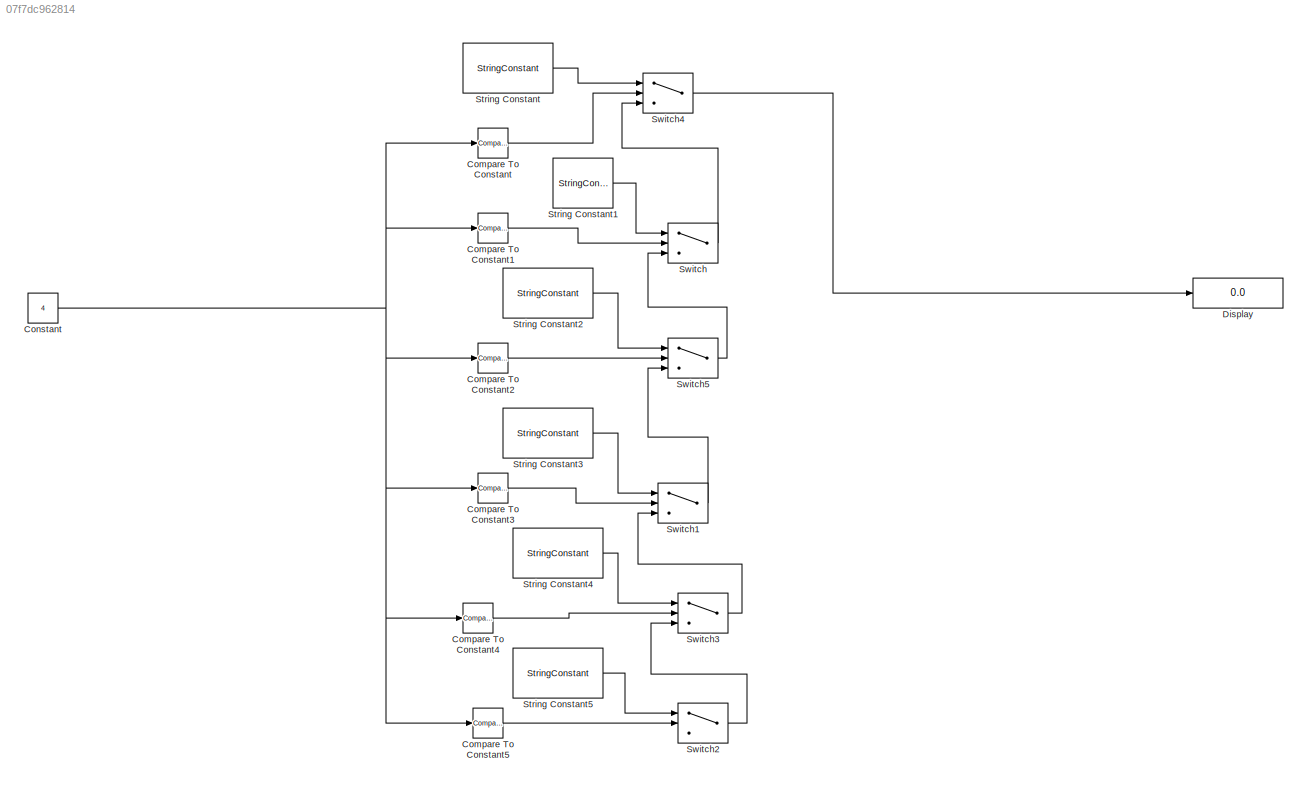
MODEL slx_07f7dc962814
KIND model
CONFIG AbsTol = auto
CONFIG EnableMultiTasking = off
CONFIG FixedStep = auto
CONFIG MaxStep = auto
CONFIG MinStep = auto
CONFIG RelTol = 1e-3
CONFIG SampleTimeConstraint = Unconstrained
CONFIG SolverName = VariableStepAuto
CONFIG StartTime = 0.0
CONFIG StopTime = 10.0
BLOCK [Reference] Compare To Constant  REF=simulink/Logic and Bit
Operations/Compare
To Constant
  Ports = [1, 1]
  SourceBlock = simulink/Logic and Bit\nOperations/Compare\nTo Constant
  SourceProductBaseCode = SL
  SourceType = Compare To Constant
BLOCK [Reference] Compare To Constant1  REF=simulink/Logic and Bit
Operations/Compare
To Constant
  Ports = [1, 1]
  SourceBlock = simulink/Logic and Bit\nOperations/Compare\nTo Constant
  SourceProductBaseCode = SL
  SourceType = Compare To Constant
BLOCK [Reference] Compare To Constant2  REF=simulink/Logic and Bit
Operations/Compare
To Constant
  Ports = [1, 1]
  SourceBlock = simulink/Logic and Bit\nOperations/Compare\nTo Constant
  SourceProductBaseCode = SL
  SourceType = Compare To Constant
BLOCK [Reference] Compare To Constant3  REF=simulink/Logic and Bit
Operations/Compare
To Constant
  Ports = [1, 1]
  SourceBlock = simulink/Logic and Bit\nOperations/Compare\nTo Constant
  SourceProductBaseCode = SL
  SourceType = Compare To Constant
BLOCK [Reference] Compare To Constant4  REF=simulink/Logic and Bit
Operations/Compare
To Constant
  Ports = [1, 1]
  SourceBlock = simulink/Logic and Bit\nOperations/Compare\nTo Constant
  SourceProductBaseCode = SL
  SourceType = Compare To Constant
BLOCK [Reference] Compare To Constant5  REF=simulink/Logic and Bit
Operations/Compare
To Constant
  Ports = [1, 1]
  SourceBlock = simulink/Logic and Bit\nOperations/Compare\nTo Constant
  SourceProductBaseCode = SL
  SourceType = Compare To Constant
BLOCK [Constant] Constant
  Value = 4
BLOCK [Display] Display
  Decimation = 1
  Ports = [1]
BLOCK [StringConstant] String Constant
  String = "KPT-295"
BLOCK [StringConstant] String Constant1
  String = "374-HQR"
BLOCK [StringConstant] String Constant2
  String = "AKH-343"
BLOCK [StringConstant] String Constant3
  String = "AXZ-016"
BLOCK [StringConstant] String Constant4
  String = "AWR-310"
BLOCK [StringConstant] String Constant5
  String = "AFR-420"
BLOCK [Switch] Switch
  InputSameDT = off
  SaturateOnIntegerOverflow = off
BLOCK [Switch] Switch1
  InputSameDT = off
  SaturateOnIntegerOverflow = off
BLOCK [Switch] Switch2
  InputSameDT = off
  SaturateOnIntegerOverflow = off
BLOCK [Switch] Switch3
  InputSameDT = off
  SaturateOnIntegerOverflow = off
BLOCK [Switch] Switch4
  InputSameDT = off
  SaturateOnIntegerOverflow = off
BLOCK [Switch] Switch5
  InputSameDT = off
  SaturateOnIntegerOverflow = off
LINE Compare To Constant1:1 -> Switch:2
LINE Compare To Constant2:1 -> Switch5:2
LINE Compare To Constant3:1 -> Switch1:2
LINE Compare To Constant4:1 -> Switch3:2
LINE Compare To Constant5:1 -> Switch2:2
LINE Compare To Constant:1 -> Switch4:2
NET Constant:1 -> Compare To Constant1:1, Compare To Constant2:1, Compare To Constant3:1, Compare To Constant4:1, Compare To Constant5:1, Compare To Constant:1
LINE String Constant1:1 -> Switch:1
LINE String Constant2:1 -> Switch5:1
LINE String Constant3:1 -> Switch1:1
LINE String Constant4:1 -> Switch3:1
LINE String Constant5:1 -> Switch2:1
LINE String Constant:1 -> Switch4:1
LINE Switch1:1 -> Switch5:3
LINE Switch2:1 -> Switch3:3
LINE Switch3:1 -> Switch1:3
LINE Switch4:1 -> Display:1
LINE Switch5:1 -> Switch:3
LINE Switch:1 -> Switch4:3
note: NET lines group one-source signal fan-out (src -> all destinations, sorted); 1:1 wires keep LINE
